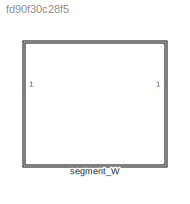
MODEL slx_fd90f30c28f5
KIND library
CONFIG AbsTol = auto
CONFIG EnableMultiTasking = off
CONFIG FixedStep = auto
CONFIG MaxStep = auto
CONFIG MinStep = auto
CONFIG RelTol = 1e-3
CONFIG SampleTimeConstraint = Unconstrained
CONFIG Solver = VariableStepAuto
CONFIG SolverName = VariableStepAuto
CONFIG StartTime = 0.0
CONFIG StopTime = 10.0
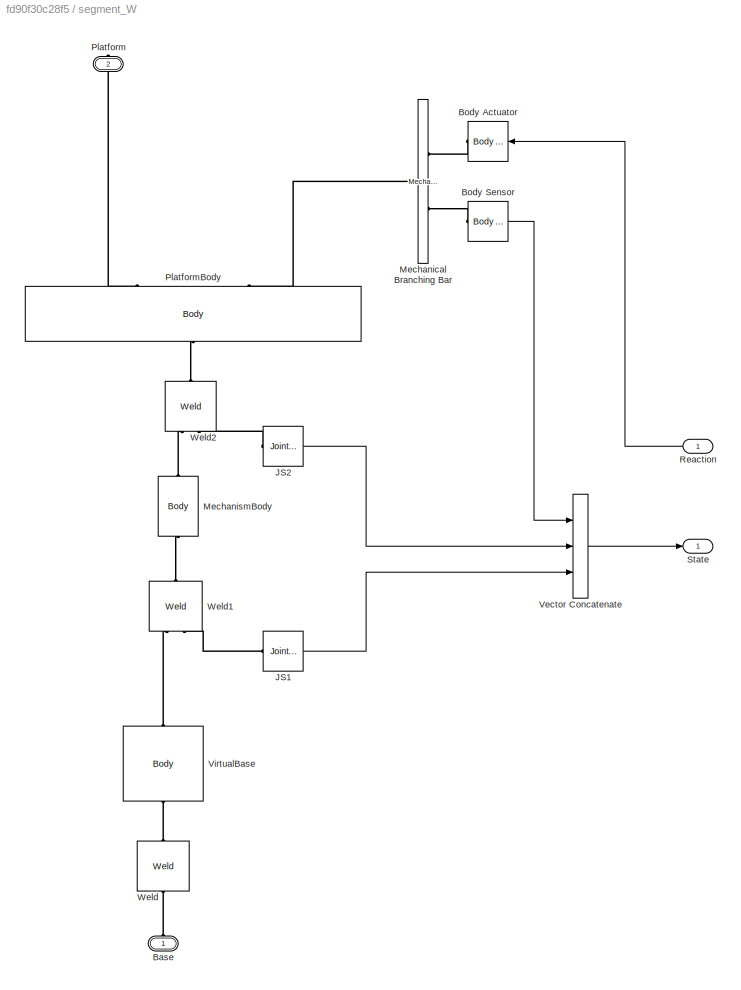
BLOCK [SubSystem] segment_W
  Ports = [1, 1, 0, 0, 0, 1, 1]
  RequestExecContextInheritance = off
  Variant = off
BLOCK [PMIOPort] segment_W/Base
  Port = 1
  Side = Left
BLOCK [Reference] segment_W/Body Actuator  REF=mblibv1/Sensors & 
Actuators/Body Actuator
  Ports = [1, 0, 0, 0, 0, 0, 1]
  SourceBlock = mblibv1/Sensors & \nActuators/Body Actuator
  SourceProductBaseCode = MS
  SourceProductName = Simscape Multibody
  SourceType = Body Actuator
BLOCK [Reference] segment_W/Body Sensor  REF=mblibv1/Sensors & 
Actuators/Body Sensor
  Ports = [0, 1, 0, 0, 0, 1]
  SourceBlock = mblibv1/Sensors & \nActuators/Body Sensor
  SourceProductBaseCode = MS
  SourceProductName = Simscape Multibody
  SourceType = Body Sensor
BLOCK [Reference] segment_W/JS1  REF=mblibv1/Sensors & 
Actuators/Joint Sensor
  Ports = [0, 1, 0, 0, 0, 1]
  SourceBlock = mblibv1/Sensors & \nActuators/Joint Sensor
  SourceProductBaseCode = MS
  SourceProductName = Simscape Multibody
  SourceType = Joint Sensor
BLOCK [Reference] segment_W/JS2  REF=mblibv1/Sensors & 
Actuators/Joint Sensor
  Ports = [0, 1, 0, 0, 0, 1]
  SourceBlock = mblibv1/Sensors & \nActuators/Joint Sensor
  SourceProductBaseCode = MS
  SourceProductName = Simscape Multibody
  SourceType = Joint Sensor
BLOCK [Reference] segment_W/Mechanical Branching Bar  REF=mblibv1/Utilities/Mechanical
Branching
Bar
  Ports = [0, 0, 0, 0, 0, 1, 2]
  SourceBlock = mblibv1/Utilities/Mechanical\nBranching\nBar
  SourceProductBaseCode = MS
  SourceProductName = Simscape Multibody
  SourceType = Mechanical Branching Bar
BLOCK [Reference] segment_W/MechanismBody  REF=mblibv1/Bodies/Body
  Ports = [0, 0, 0, 0, 0, 1, 1]
  SourceBlock = mblibv1/Bodies/Body
  SourceProductBaseCode = MS
  SourceProductName = Simscape Multibody
  SourceType = Body
BLOCK [PMIOPort] segment_W/Platform
  Port = 2
  Side = Right
BLOCK [Reference] segment_W/PlatformBody  REF=mblibv1/Bodies/Body
  Ports = [0, 0, 0, 0, 0, 2, 1]
  SourceBlock = mblibv1/Bodies/Body
  SourceProductBaseCode = MS
  SourceProductName = Simscape Multibody
  SourceType = Body
BLOCK [Inport] segment_W/Reaction
  IconDisplay = Port number
  OutDataTypeStr = double
BLOCK [Outport] segment_W/State
  IconDisplay = Port number
  OutDataTypeStr = double
BLOCK [Concatenate] segment_W/Vector Concatenate
  NumInputs = 3
  Ports = [3, 1]
BLOCK [Reference] segment_W/VirtualBase  REF=mblibv1/Bodies/Body
  Ports = [0, 0, 0, 0, 0, 1, 1]
  SourceBlock = mblibv1/Bodies/Body
  SourceProductBaseCode = MS
  SourceProductName = Simscape Multibody
  SourceType = Body
BLOCK [Reference] segment_W/Weld  REF=mblibv1/Joints/Weld
  Ports = [0, 0, 0, 0, 0, 1, 1]
  SourceBlock = mblibv1/Joints/Weld
  SourceProductBaseCode = MS
  SourceProductName = Simscape Multibody
  SourceType = Weld
BLOCK [Reference] segment_W/Weld1  REF=mblibv1/Joints/Weld
  Ports = [0, 0, 0, 0, 0, 2, 1]
  SourceBlock = mblibv1/Joints/Weld
  SourceProductBaseCode = MS
  SourceProductName = Simscape Multibody
  SourceType = Weld
BLOCK [Reference] segment_W/Weld2  REF=mblibv1/Joints/Weld
  Ports = [0, 0, 0, 0, 0, 2, 1]
  SourceBlock = mblibv1/Joints/Weld
  SourceProductBaseCode = MS
  SourceProductName = Simscape Multibody
  SourceType = Weld
LINE segment_W/Body Sensor:1 -> segment_W/Vector Concatenate:1
LINE segment_W/JS1:1 -> segment_W/Vector Concatenate:3
LINE segment_W/JS2:1 -> segment_W/Vector Concatenate:2
LINE segment_W/Reaction:1 -> segment_W/Body Actuator:1
LINE segment_W/Vector Concatenate:1 -> segment_W/State:1
PLINE segment_W/Base:RConn1 -- segment_W/Weld:LConn1
PLINE segment_W/Body Actuator:RConn1 -- segment_W/Mechanical Branching Bar:RConn1
PLINE segment_W/Body Sensor:LConn1 -- segment_W/Mechanical Branching Bar:RConn2
PLINE segment_W/JS1:LConn1 -- segment_W/Weld1:LConn2
PLINE segment_W/JS2:LConn1 -- segment_W/Weld2:LConn2
PLINE segment_W/Mechanical Branching Bar:LConn1 -- segment_W/PlatformBody:LConn2
PLINE segment_W/MechanismBody:LConn1 -- segment_W/Weld2:LConn1
PLINE segment_W/MechanismBody:RConn1 -- segment_W/Weld1:RConn1
PLINE segment_W/Platform:RConn1 -- segment_W/PlatformBody:LConn1
PLINE segment_W/PlatformBody:RConn1 -- segment_W/Weld2:RConn1
PLINE segment_W/VirtualBase:LConn1 -- segment_W/Weld1:LConn1
PLINE segment_W/VirtualBase:RConn1 -- segment_W/Weld:RConn1
